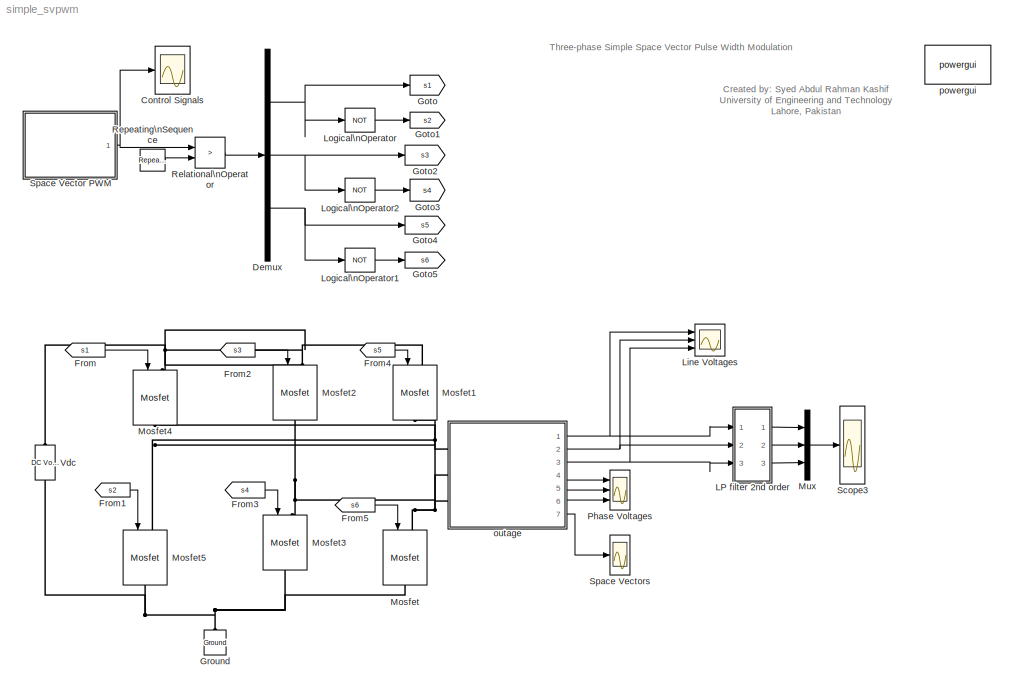
MODEL simple_svpwm
KIND model
CONFIG InitFcn = clc;\n\nf=50;           % Reference frequency\nfs=4000;      % Switching frequency\nm=1;           % Modulation index\n\nTs=10e-6;    % Sampling time of devices\n
CONFIG StopFcn = close all;\nfigure(1);\nplot(a(:,1),a(:,2),'-b',b(:,1),b(:,2),'-r');\naxis equal;\ngrid;\ntitle('Space Vector Trajectory');\nclear;\nclc;
BLOCK [Scope] Control Signals
  DataFormat = StructureWithTime
  Floating = off
  LimitDataPoints = off
  MaxDataPoints = 25000
  NumInputPorts = 1
  Ports = [1]
  SID = 10
  SampleInput = on
  SampleTime = Ts
  SaveName = ScopeData1
  TimeRange = 0.02
  YMax = 0.8
  YMin = -0.8
BLOCK [Demux] Demux
  DisplayOption = bar
  Outputs = 3
  Ports = [1, 3]
  SID = 74
BLOCK [From] From
  CloseFcn = tagdialog Close
  GotoTag = s1
  SID = 19
BLOCK [From] From1
  CloseFcn = tagdialog Close
  GotoTag = s2
  SID = 20
BLOCK [From] From2
  CloseFcn = tagdialog Close
  GotoTag = s3
  SID = 21
BLOCK [From] From3
  CloseFcn = tagdialog Close
  GotoTag = s4
  SID = 22
BLOCK [From] From4
  CloseFcn = tagdialog Close
  GotoTag = s5
  SID = 23
BLOCK [From] From5
  CloseFcn = tagdialog Close
  GotoTag = s6
  SID = 24
BLOCK [Goto] Goto
  GotoTag = s1
  SID = 75
  TagVisibility = local
BLOCK [Goto] Goto1
  GotoTag = s2
  SID = 76
  TagVisibility = local
BLOCK [Goto] Goto2
  GotoTag = s3
  SID = 77
  TagVisibility = local
BLOCK [Goto] Goto3
  GotoTag = s4
  SID = 78
  TagVisibility = local
BLOCK [Goto] Goto4
  GotoTag = s5
  SID = 79
  TagVisibility = local
BLOCK [Goto] Goto5
  GotoTag = s6
  SID = 80
  TagVisibility = local
BLOCK [Reference] Ground  REF=powerlib/Elements/Ground
  DialogController = POWERSYS.PowerSysDialog
  LConnTagsString = a
  LeftPortType = p1
  PhysicalDomain = powersysdomain
  Ports = [0, 0, 0, 0, 0, 1]
  RightPortType = p1
  SID = 25
  SourceBlock = powerlib/Elements/Ground
  SourceType = Ground
  SubClassName = unknown
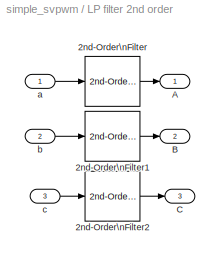
BLOCK [SubSystem] LP filter 2nd order
  FunctionWithSeparateData = off
  MaskCallbackString = |
  MaskEnableString = on,on
  MaskHideContents = off
  MaskIconFrame = on
  MaskIconOpaque = on
  MaskIconRotate = none
  MaskIconUnits = autoscale
  MaskPortRotate = default
  MaskPromptString = Cut off frequency|Damping Factor
  MaskStyleString = edit,edit
  MaskToolTipString = on,on
  MaskTunableValueString = on,on
  MaskValueString = 200|0.707
  MaskVariables = cutoff_frequency=@1;damping_factor=@2;
  MaskVisibilityString = on,on
  MinAlgLoopOccurrences = off
  Opaque = off
  Ports = [3, 3]
  PropExecContextOutsideSubsystem = off
  RTWSystemCode = Auto
  RequestExecContextInheritance = off
  SID = 26
BLOCK [Reference] LP filter 2nd order/2nd-Order\nFilter  REF=powerlib_extras/Control \nBlocks/2nd-Order\nFilter
  DialogController = POWERSYS.PowerSysDialog
  FilterType = Lowpass
  Fo = cutoff_frequency
  FunctionWithSeparateData = off
  Initialize = off
  PlotResponse = off
  Ports = [1, 1]
  RTWMemSecDataConstants = Inherit from model
  RTWMemSecDataInternal = Inherit from model
  RTWMemSecDataParameters = Inherit from model
  RTWMemSecFuncExecute = Inherit from model
  RTWMemSecFuncInitTerm = Inherit from model
  SID = 30
  ShowPortLabels = FromPortIcon
  SourceBlock = powerlib_extras/Control \nBlocks/2nd-Order\nFilter
  SourceType = 2nd-Order Filter
  SystemSampleTime = -1
  Vac_Init = [1 45 60]
  Vdc_Init = -0.5
  Zeta = damping_factor
  param1 = [1 500 1]
BLOCK [Reference] LP filter 2nd order/2nd-Order\nFilter1  REF=powerlib_extras/Control \nBlocks/2nd-Order\nFilter
  DialogController = POWERSYS.PowerSysDialog
  FilterType = Lowpass
  Fo = cutoff_frequency
  FunctionWithSeparateData = off
  Initialize = off
  PlotResponse = off
  Ports = [1, 1]
  RTWMemSecDataConstants = Inherit from model
  RTWMemSecDataInternal = Inherit from model
  RTWMemSecDataParameters = Inherit from model
  RTWMemSecFuncExecute = Inherit from model
  RTWMemSecFuncInitTerm = Inherit from model
  SID = 31
  ShowPortLabels = FromPortIcon
  SourceBlock = powerlib_extras/Control \nBlocks/2nd-Order\nFilter
  SourceType = 2nd-Order Filter
  SystemSampleTime = -1
  Vac_Init = [1 45 60]
  Vdc_Init = -0.5
  Zeta = damping_factor
  param1 = [1 500 1]
BLOCK [Reference] LP filter 2nd order/2nd-Order\nFilter2  REF=powerlib_extras/Control \nBlocks/2nd-Order\nFilter
  DialogController = POWERSYS.PowerSysDialog
  FilterType = Lowpass
  Fo = cutoff_frequency
  FunctionWithSeparateData = off
  Initialize = off
  PlotResponse = off
  Ports = [1, 1]
  RTWMemSecDataConstants = Inherit from model
  RTWMemSecDataInternal = Inherit from model
  RTWMemSecDataParameters = Inherit from model
  RTWMemSecFuncExecute = Inherit from model
  RTWMemSecFuncInitTerm = Inherit from model
  SID = 32
  ShowPortLabels = FromPortIcon
  SourceBlock = powerlib_extras/Control \nBlocks/2nd-Order\nFilter
  SourceType = 2nd-Order Filter
  SystemSampleTime = -1
  Vac_Init = [1 45 60]
  Vdc_Init = -0.5
  Zeta = damping_factor
  param1 = [1 500 1]
BLOCK [Outport] LP filter 2nd order/A
  IconDisplay = Port number
  OutDataType = sfix(16)
  OutScaling = 2^0
  SID = 33
BLOCK [Outport] LP filter 2nd order/B
  IconDisplay = Port number
  OutDataType = sfix(16)
  OutScaling = 2^0
  Port = 2
  SID = 34
BLOCK [Outport] LP filter 2nd order/C
  IconDisplay = Port number
  OutDataType = sfix(16)
  OutScaling = 2^0
  Port = 3
  SID = 35
BLOCK [Inport] LP filter 2nd order/a
  IconDisplay = Port number
  OutDataType = sfix(16)
  OutScaling = 2^0
  SID = 27
BLOCK [Inport] LP filter 2nd order/b
  IconDisplay = Port number
  OutDataType = sfix(16)
  OutScaling = 2^0
  Port = 2
  SID = 28
BLOCK [Inport] LP filter 2nd order/c
  IconDisplay = Port number
  OutDataType = sfix(16)
  OutScaling = 2^0
  Port = 3
  SID = 29
BLOCK [Scope] Line Voltages
  DataFormat = StructureWithTime
  Floating = off
  MaxDataPoints = 5000000
  NumInputPorts = 3
  Ports = [3]
  SID = 42
  SampleInput = on
  SampleTime = 2e-6
  SaveName = Line_voltages
  SaveToWorkspace = on
  YMax = 450~450~450
  YMin = -450~-450~-450
  ZoomMode = xonly
BLOCK [Logic] Logical\nOperator
  AllPortsSameDT = off
  LogicDataType = fixdt(0, 8)
  Operator = NOT
  OutDataTypeMode = boolean
  OutDataTypeStr = boolean
  Ports = [1, 1]
  SID = 81
BLOCK [Logic] Logical\nOperator1
  AllPortsSameDT = off
  LogicDataType = fixdt(0, 8)
  Operator = NOT
  OutDataTypeMode = boolean
  OutDataTypeStr = boolean
  Ports = [1, 1]
  SID = 82
BLOCK [Logic] Logical\nOperator2
  AllPortsSameDT = off
  LogicDataType = fixdt(0, 8)
  Operator = NOT
  OutDataTypeMode = boolean
  OutDataTypeStr = boolean
  Ports = [1, 1]
  SID = 83
BLOCK [Reference] Mosfet  REF=powerlib/Power\nElectronics/Mosfet
  Cs = inf
  DialogController = POWERSYS.PowerSysDialog
  FunctionWithSeparateData = off
  IC = 0
  Lon = 0
  Measurements = off
  Ports = [1, 0, 0, 0, 0, 1, 1]
  RTWMemSecDataConstants = Inherit from model
  RTWMemSecDataInternal = Inherit from model
  RTWMemSecDataParameters = Inherit from model
  RTWMemSecFuncExecute = Inherit from model
  RTWMemSecFuncInitTerm = Inherit from model
  Rd = 0.01
  Ron = 0.1
  Rs = 1e5
  SID = 36
  ShowPortLabels = FromPortIcon
  SourceBlock = powerlib/Power\nElectronics/Mosfet
  SourceType = Mosfet
  SystemSampleTime = -1
  Vfd = 0
BLOCK [Reference] Mosfet1  REF=powerlib/Power\nElectronics/Mosfet
  Cs = inf
  DialogController = POWERSYS.PowerSysDialog
  FunctionWithSeparateData = off
  IC = 0
  Lon = 0
  Measurements = off
  Ports = [1, 0, 0, 0, 0, 1, 1]
  RTWMemSecDataConstants = Inherit from model
  RTWMemSecDataInternal = Inherit from model
  RTWMemSecDataParameters = Inherit from model
  RTWMemSecFuncExecute = Inherit from model
  RTWMemSecFuncInitTerm = Inherit from model
  Rd = 0.01
  Ron = 0.1
  Rs = 1e5
  SID = 37
  ShowPortLabels = FromPortIcon
  SourceBlock = powerlib/Power\nElectronics/Mosfet
  SourceType = Mosfet
  SystemSampleTime = -1
  Vfd = 0
BLOCK [Reference] Mosfet2  REF=powerlib/Power\nElectronics/Mosfet
  Cs = inf
  DialogController = POWERSYS.PowerSysDialog
  FunctionWithSeparateData = off
  IC = 0
  Lon = 0
  Measurements = off
  Ports = [1, 0, 0, 0, 0, 1, 1]
  RTWMemSecDataConstants = Inherit from model
  RTWMemSecDataInternal = Inherit from model
  RTWMemSecDataParameters = Inherit from model
  RTWMemSecFuncExecute = Inherit from model
  RTWMemSecFuncInitTerm = Inherit from model
  Rd = 0.01
  Ron = 0.1
  Rs = 1e5
  SID = 38
  ShowPortLabels = FromPortIcon
  SourceBlock = powerlib/Power\nElectronics/Mosfet
  SourceType = Mosfet
  SystemSampleTime = -1
  Vfd = 0
BLOCK [Reference] Mosfet3  REF=powerlib/Power\nElectronics/Mosfet
  Cs = inf
  DialogController = POWERSYS.PowerSysDialog
  FunctionWithSeparateData = off
  IC = 0
  Lon = 0
  Measurements = off
  Ports = [1, 0, 0, 0, 0, 1, 1]
  RTWMemSecDataConstants = Inherit from model
  RTWMemSecDataInternal = Inherit from model
  RTWMemSecDataParameters = Inherit from model
  RTWMemSecFuncExecute = Inherit from model
  RTWMemSecFuncInitTerm = Inherit from model
  Rd = 0.01
  Ron = 0.1
  Rs = 1e5
  SID = 39
  ShowPortLabels = FromPortIcon
  SourceBlock = powerlib/Power\nElectronics/Mosfet
  SourceType = Mosfet
  SystemSampleTime = -1
  Vfd = 0
BLOCK [Reference] Mosfet4  REF=powerlib/Power\nElectronics/Mosfet
  Cs = inf
  DialogController = POWERSYS.PowerSysDialog
  FunctionWithSeparateData = off
  IC = 0
  Lon = 0
  Measurements = off
  Ports = [1, 0, 0, 0, 0, 1, 1]
  RTWMemSecDataConstants = Inherit from model
  RTWMemSecDataInternal = Inherit from model
  RTWMemSecDataParameters = Inherit from model
  RTWMemSecFuncExecute = Inherit from model
  RTWMemSecFuncInitTerm = Inherit from model
  Rd = 0.01
  Ron = 0.1
  Rs = 1e5
  SID = 40
  ShowPortLabels = FromPortIcon
  SourceBlock = powerlib/Power\nElectronics/Mosfet
  SourceType = Mosfet
  SystemSampleTime = -1
  Vfd = 0
BLOCK [Reference] Mosfet5  REF=powerlib/Power\nElectronics/Mosfet
  Cs = inf
  DialogController = POWERSYS.PowerSysDialog
  FunctionWithSeparateData = off
  IC = 0
  Lon = 0
  Measurements = off
  Ports = [1, 0, 0, 0, 0, 1, 1]
  RTWMemSecDataConstants = Inherit from model
  RTWMemSecDataInternal = Inherit from model
  RTWMemSecDataParameters = Inherit from model
  RTWMemSecFuncExecute = Inherit from model
  RTWMemSecFuncInitTerm = Inherit from model
  Rd = 0.01
  Ron = 0.1
  Rs = 1e5
  SID = 41
  ShowPortLabels = FromPortIcon
  SourceBlock = powerlib/Power\nElectronics/Mosfet
  SourceType = Mosfet
  SystemSampleTime = -1
  Vfd = 0
BLOCK [Mux] Mux
  DisplayOption = bar
  Inputs = 3
  Ports = [3, 1]
  SID = 104
BLOCK [Scope] Phase Voltages
  DataFormat = StructureWithTime
  Floating = off
  MaxDataPoints = 5000000
  NumInputPorts = 3
  Ports = [3]
  SID = 43
  SampleInput = on
  SampleTime = 2e-6
  SaveName = Neutral_voltages
  SaveToWorkspace = on
  YMax = 300~300~300
  YMin = -300~-300~-300
  ZoomMode = xonly
BLOCK [RelationalOperator] Relational\nOperator
  InputSameDT = off
  Operator = >
  Ports = [2, 1]
  SID = 15
BLOCK [Reference] Repeating\nSequence  REF=simulink/Sources/Repeating\nSequence
  FunctionWithSeparateData = off
  Ports = [0, 1]
  RTWMemSecDataConstants = Inherit from model
  RTWMemSecDataInternal = Inherit from model
  RTWMemSecDataParameters = Inherit from model
  RTWMemSecFuncExecute = Inherit from model
  RTWMemSecFuncInitTerm = Inherit from model
  SID = 16
  ShowPortLabels = FromPortIcon
  SourceBlock = simulink/Sources/Repeating\nSequence
  SourceType = Repeating table
  SystemSampleTime = -1
  rep_seq_t = [0 0.25/fs 0.5/fs 0.75/fs 1/fs]
  rep_seq_y = [1 0 -1 0 1]
BLOCK [Scope] Scope3
  DataFormat = StructureWithTime
  Floating = off
  MaxDataPoints = 5000000
  NumInputPorts = 1
  Ports = [1]
  SID = 44
  SampleInput = on
  SampleTime = 2e-6
  SaveName = Filtered_voltages
  SaveToWorkspace = on
  YMax = 400
  YMin = -400
  ZoomMode = xonly
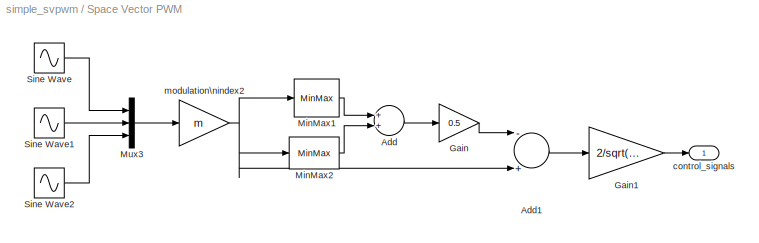
BLOCK [SubSystem] Space Vector PWM
  FunctionWithSeparateData = off
  MaskHideContents = off
  MinAlgLoopOccurrences = off
  Opaque = off
  Ports = [0, 1]
  PropExecContextOutsideSubsystem = off
  RTWSystemCode = Auto
  RequestExecContextInheritance = off
  SID = 17
BLOCK [Sum] Space Vector PWM/Add
  InputSameDT = off
  OutDataType = fixdt(1, 16)
  OutDataTypeMode = Inherit via internal rule
  OutDataTypeStr = Inherit: Inherit via internal rule
  OutScaling = 2^-10
  Ports = [2, 1]
  SID = 11
  SaturateOnIntegerOverflow = off
BLOCK [Sum] Space Vector PWM/Add1
  InputSameDT = off
  Inputs = -+
  OutDataType = fixdt(1, 16)
  OutDataTypeMode = Inherit via internal rule
  OutDataTypeStr = Inherit: Inherit via internal rule
  OutScaling = 2^-10
  Ports = [2, 1]
  SID = 13
  SaturateOnIntegerOverflow = off
BLOCK [Gain] Space Vector PWM/Gain
  Gain = 0.5
  OutDataType = fixdt(1, 16)
  OutDataTypeMode = Inherit via internal rule
  OutDataTypeStr = Inherit: Inherit via internal rule
  OutScaling = 2^0
  ParamDataTypeStr = Inherit: Inherit via internal rule
  ParameterDataType = fixdt(1, 16)
  ParameterDataTypeMode = Inherit via internal rule
  ParameterScaling = 2^0
  SID = 12
  SaturateOnIntegerOverflow = off
BLOCK [Gain] Space Vector PWM/Gain1
  Gain = 2/sqrt(3)
  OutDataType = fixdt(1, 16)
  OutDataTypeMode = Inherit via internal rule
  OutDataTypeStr = Inherit: Inherit via internal rule
  OutScaling = 2^0
  ParamDataTypeStr = Inherit: Inherit via internal rule
  ParameterDataType = fixdt(1, 16)
  ParameterDataTypeMode = Inherit via internal rule
  ParameterScaling = 2^0
  SID = 14
  SaturateOnIntegerOverflow = off
BLOCK [MinMax] Space Vector PWM/MinMax1
  Function = min
  Ports = [1, 1]
  SID = 7
BLOCK [MinMax] Space Vector PWM/MinMax2
  Function = max
  Ports = [1, 1]
  SID = 8
BLOCK [Mux] Space Vector PWM/Mux3
  DisplayOption = bar
  Inputs = 3
  Ports = [3, 1]
  SID = 1
BLOCK [Sin] Space Vector PWM/Sine Wave
  Amplitude = 1
  Bias = 0
  Frequency = 2*pi*f
  Offset = 0
  Phase = pi/2
  Ports = [0, 1]
  SID = 2
  SampleTime = 0
  Samples = 10
BLOCK [Sin] Space Vector PWM/Sine Wave1
  Amplitude = 1
  Bias = 0
  Frequency = 2*pi*f
  Offset = 0
  Phase = pi/2 -2*pi/3
  Ports = [0, 1]
  SID = 3
  SampleTime = 0
  Samples = 10
BLOCK [Sin] Space Vector PWM/Sine Wave2
  Amplitude = 1
  Bias = 0
  Frequency = 2*pi*f
  Offset = 0
  Phase = pi/2+2*pi/3
  Ports = [0, 1]
  SID = 4
  SampleTime = 0
  Samples = 10
BLOCK [Outport] Space Vector PWM/control_signals
  IconDisplay = Port number
  SID = 18
BLOCK [Gain] Space Vector PWM/modulation\nindex2
  Gain = m
  OutDataType = sfix(16)
  OutScaling = 2^0
  ParameterDataType = sfix(16)
  ParameterScaling = 2^0
  SID = 5
BLOCK [Scope] Space Vectors
  DataFormat = StructureWithTime
  Floating = off
  MaxDataPoints = 5000000
  NumInputPorts = 1
  Ports = [1]
  SID = 105
  SampleInput = on
  SampleTime = 2e-6
  SaveName = Neutral_voltages1
  SaveToWorkspace = on
  YMax = 350
  YMin = -350
  ZoomMode = xonly
BLOCK [Reference] Vdc  REF=powerlib/Electrical\nSources/DC Voltage Source
  Amplitude = 400
  DialogController = POWERSYS.PowerSysDialog
  FunctionWithSeparateData = off
  Measurements = None
  Ports = [0, 0, 0, 0, 0, 1, 1]
  RTWMemSecDataConstants = Inherit from model
  RTWMemSecDataInternal = Inherit from model
  RTWMemSecDataParameters = Inherit from model
  RTWMemSecFuncExecute = Inherit from model
  RTWMemSecFuncInitTerm = Inherit from model
  SID = 45
  ShowPortLabels = FromPortIcon
  SourceBlock = powerlib/Electrical\nSources/DC Voltage Source
  SourceType = DC Voltage Source
  SystemSampleTime = -1
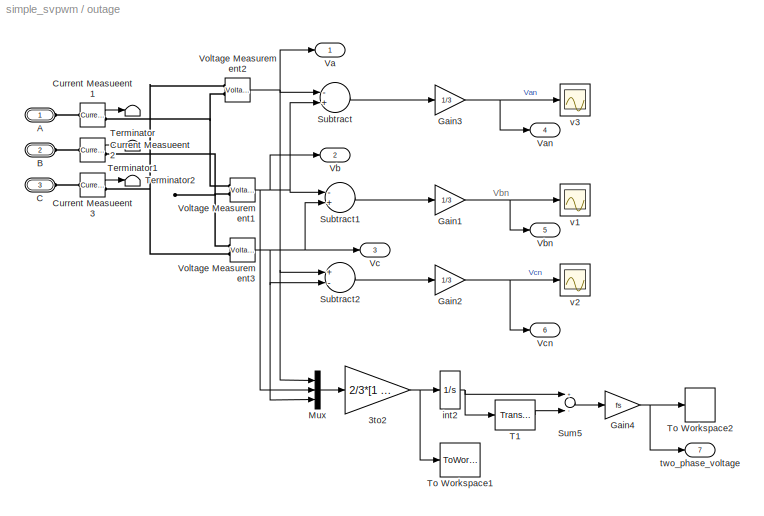
BLOCK [SubSystem] outage
  FunctionWithSeparateData = off
  MaskHideContents = off
  MinAlgLoopOccurrences = off
  Opaque = off
  Ports = [0, 7, 0, 0, 0, 3]
  PropExecContextOutsideSubsystem = off
  RTWSystemCode = Auto
  RequestExecContextInheritance = off
  SID = 46
BLOCK [Gain] outage/3to2
  Gain = 2/3*[1 -0.5 -0.5;0 sqrt(3)/2 -sqrt(3)/2]
  Multiplication = Matrix(K*u)
  OutDataType = sfix(16)
  OutScaling = 2^0
  ParameterDataType = sfix(16)
  ParameterScaling = 2^0
  SID = 86
BLOCK [PMIOPort] outage/A
  Port = 1
  SID = 65
  Side = Left
BLOCK [PMIOPort] outage/B
  Port = 2
  SID = 66
  Side = Left
BLOCK [PMIOPort] outage/C
  Port = 3
  SID = 67
  Side = Left
BLOCK [Reference] outage/Current Measueent1  REF=powerlib/Measurements/Current Measurement
  DialogController = POWERSYS.PowerSysDialog
  FunctionWithSeparateData = off
  OutputType = Complex
  PSBequivalent = 0
  PhasorSimulation = off
  Ports = [0, 1, 0, 0, 0, 1, 1]
  RTWMemSecDataConstants = Inherit from model
  RTWMemSecDataInternal = Inherit from model
  RTWMemSecDataParameters = Inherit from model
  RTWMemSecFuncExecute = Inherit from model
  RTWMemSecFuncInitTerm = Inherit from model
  SID = 47
  ShowPortLabels = FromPortIcon
  SourceBlock = powerlib/Measurements/Current Measurement
  SourceType = Current Measurement
  SystemSampleTime = -1
BLOCK [Reference] outage/Current Measueent2  REF=powerlib/Measurements/Current Measurement
  DialogController = POWERSYS.PowerSysDialog
  FunctionWithSeparateData = off
  OutputType = Complex
  PSBequivalent = 0
  PhasorSimulation = off
  Ports = [0, 1, 0, 0, 0, 1, 1]
  RTWMemSecDataConstants = Inherit from model
  RTWMemSecDataInternal = Inherit from model
  RTWMemSecDataParameters = Inherit from model
  RTWMemSecFuncExecute = Inherit from model
  RTWMemSecFuncInitTerm = Inherit from model
  SID = 48
  ShowPortLabels = FromPortIcon
  SourceBlock = powerlib/Measurements/Current Measurement
  SourceType = Current Measurement
  SystemSampleTime = -1
BLOCK [Reference] outage/Current Measueent3  REF=powerlib/Measurements/Current Measurement
  DialogController = POWERSYS.PowerSysDialog
  FunctionWithSeparateData = off
  OutputType = Complex
  PSBequivalent = 0
  PhasorSimulation = off
  Ports = [0, 1, 0, 0, 0, 1, 1]
  RTWMemSecDataConstants = Inherit from model
  RTWMemSecDataInternal = Inherit from model
  RTWMemSecDataParameters = Inherit from model
  RTWMemSecFuncExecute = Inherit from model
  RTWMemSecFuncInitTerm = Inherit from model
  SID = 49
  ShowPortLabels = FromPortIcon
  SourceBlock = powerlib/Measurements/Current Measurement
  SourceType = Current Measurement
  SystemSampleTime = -1
BLOCK [Gain] outage/Gain1
  Gain = 1/3
  OutDataType = sfix(16)
  OutDataTypeMode = Inherit via internal rule
  OutDataTypeStr = Inherit: Inherit via internal rule
  OutScaling = 2^0
  ParamDataTypeStr = Inherit: Inherit via internal rule
  ParameterDataType = sfix(16)
  ParameterDataTypeMode = Inherit via internal rule
  ParameterScaling = 2^0
  SID = 50
  SaturateOnIntegerOverflow = off
BLOCK [Gain] outage/Gain2
  Gain = 1/3
  OutDataType = sfix(16)
  OutDataTypeMode = Inherit via internal rule
  OutDataTypeStr = Inherit: Inherit via internal rule
  OutScaling = 2^0
  ParamDataTypeStr = Inherit: Inherit via internal rule
  ParameterDataType = sfix(16)
  ParameterDataTypeMode = Inherit via internal rule
  ParameterScaling = 2^0
  SID = 51
  SaturateOnIntegerOverflow = off
BLOCK [Gain] outage/Gain3
  Gain = 1/3
  OutDataType = sfix(16)
  OutDataTypeMode = Inherit via internal rule
  OutDataTypeStr = Inherit: Inherit via internal rule
  OutScaling = 2^0
  ParamDataTypeStr = Inherit: Inherit via internal rule
  ParameterDataType = sfix(16)
  ParameterDataTypeMode = Inherit via internal rule
  ParameterScaling = 2^0
  SID = 52
  SaturateOnIntegerOverflow = off
BLOCK [Gain] outage/Gain4
  Gain = fs
  OutDataType = sfix(16)
  OutScaling = 2^0
  ParameterDataType = sfix(16)
  ParameterScaling = 2^0
  SID = 97
BLOCK [Mux] outage/Mux
  DisplayOption = bar
  Inputs = 3
  Ports = [3, 1]
  SID = 87
BLOCK [Sum] outage/Subtract
  InputSameDT = off
  Inputs = -+
  OutDataType = sfix(16)
  OutDataTypeMode = Inherit via internal rule
  OutDataTypeStr = Inherit: Inherit via internal rule
  OutScaling = 2^-10
  Ports = [2, 1]
  SID = 53
  SaturateOnIntegerOverflow = off
BLOCK [Sum] outage/Subtract1
  InputSameDT = off
  Inputs = -+
  OutDataType = sfix(16)
  OutDataTypeMode = Inherit via internal rule
  OutDataTypeStr = Inherit: Inherit via internal rule
  OutScaling = 2^-10
  Ports = [2, 1]
  SID = 54
  SaturateOnIntegerOverflow = off
BLOCK [Sum] outage/Subtract2
  InputSameDT = off
  Inputs = +-
  OutDataType = sfix(16)
  OutDataTypeMode = Inherit via internal rule
  OutDataTypeStr = Inherit: Inherit via internal rule
  OutScaling = 2^-10
  Ports = [2, 1]
  SID = 55
  SaturateOnIntegerOverflow = off
BLOCK [Sum] outage/Sum5
  Inputs = +-
  OutDataType = sfix(16)
  OutScaling = 2^0
  Ports = [2, 1]
  SID = 98
BLOCK [TransportDelay] outage/T1
  BufferSize = 2048
  DelayTime = 1/fs
  SID = 99
BLOCK [Terminator] outage/Terminator
  SID = 56
BLOCK [Terminator] outage/Terminator1
  SID = 57
BLOCK [Terminator] outage/Terminator2
  SID = 58
BLOCK [ToWorkspace] outage/To Workspace1
  Decimation = 2
  MaxDataPoints = inf
  Ports = [1]
  SID = 100
  SampleTime = -1
  SaveFormat = Array
  VariableName = a
BLOCK [ToWorkspace] outage/To Workspace2
  Decimation = 2
  MaxDataPoints = inf
  Ports = [1]
  SID = 101
  SampleTime = -1
  SaveFormat = Array
  VariableName = b
BLOCK [Outport] outage/Va
  IconDisplay = Port number
  OutDataType = sfix(16)
  OutScaling = 2^0
  SID = 68
BLOCK [Outport] outage/Van
  IconDisplay = Port number
  OutDataType = sfix(16)
  OutScaling = 2^0
  Port = 4
  SID = 71
BLOCK [Outport] outage/Vb
  IconDisplay = Port number
  OutDataType = sfix(16)
  OutScaling = 2^0
  Port = 2
  SID = 69
BLOCK [Outport] outage/Vbn
  IconDisplay = Port number
  OutDataType = sfix(16)
  OutScaling = 2^0
  Port = 5
  SID = 72
BLOCK [Outport] outage/Vc
  IconDisplay = Port number
  OutDataType = sfix(16)
  OutScaling = 2^0
  Port = 3
  SID = 70
BLOCK [Outport] outage/Vcn
  IconDisplay = Port number
  OutDataType = sfix(16)
  OutScaling = 2^0
  Port = 6
  SID = 73
BLOCK [Reference] outage/Voltage Measurement1  REF=powerlib/Measurements/Voltage Measurement
  DialogController = POWERSYS.PowerSysDialog
  FunctionWithSeparateData = off
  OutputType = Complex
  PSBequivalent = 0
  PhasorSimulation = off
  Ports = [0, 1, 0, 0, 0, 2]
  RTWMemSecDataConstants = Inherit from model
  RTWMemSecDataInternal = Inherit from model
  RTWMemSecDataParameters = Inherit from model
  RTWMemSecFuncExecute = Inherit from model
  RTWMemSecFuncInitTerm = Inherit from model
  SID = 59
  ShowPortLabels = FromPortIcon
  SourceBlock = powerlib/Measurements/Voltage Measurement
  SourceType = Voltage Measurement
  SystemSampleTime = -1
BLOCK [Reference] outage/Voltage Measurement2  REF=powerlib/Measurements/Voltage Measurement
  DialogController = POWERSYS.PowerSysDialog
  FunctionWithSeparateData = off
  OutputType = Complex
  PSBequivalent = 0
  PhasorSimulation = off
  Ports = [0, 1, 0, 0, 0, 2]
  RTWMemSecDataConstants = Inherit from model
  RTWMemSecDataInternal = Inherit from model
  RTWMemSecDataParameters = Inherit from model
  RTWMemSecFuncExecute = Inherit from model
  RTWMemSecFuncInitTerm = Inherit from model
  SID = 60
  ShowPortLabels = FromPortIcon
  SourceBlock = powerlib/Measurements/Voltage Measurement
  SourceType = Voltage Measurement
  SystemSampleTime = -1
BLOCK [Reference] outage/Voltage Measurement3  REF=powerlib/Measurements/Voltage Measurement
  DialogController = POWERSYS.PowerSysDialog
  FunctionWithSeparateData = off
  OutputType = Complex
  PSBequivalent = 0
  PhasorSimulation = off
  Ports = [0, 1, 0, 0, 0, 2]
  RTWMemSecDataConstants = Inherit from model
  RTWMemSecDataInternal = Inherit from model
  RTWMemSecDataParameters = Inherit from model
  RTWMemSecFuncExecute = Inherit from model
  RTWMemSecFuncInitTerm = Inherit from model
  SID = 61
  ShowPortLabels = FromPortIcon
  SourceBlock = powerlib/Measurements/Voltage Measurement
  SourceType = Voltage Measurement
  SystemSampleTime = -1
BLOCK [Integrator] outage/int2
  Ports = [1, 1]
  SID = 102
BLOCK [Outport] outage/two_phase_voltage
  IconDisplay = Port number
  OutDataType = sfix(16)
  OutScaling = 2^0
  Port = 7
  SID = 103
BLOCK [Scope] outage/v1
  DataFormat = StructureWithTime
  Floating = off
  MaxDataPoints = 5000000
  NumInputPorts = 1
  Ports = [1]
  SID = 62
  SampleTime = 0
  SaveName = ScopeData25
BLOCK [Scope] outage/v2
  DataFormat = StructureWithTime
  Floating = off
  MaxDataPoints = 5000000
  NumInputPorts = 1
  Ports = [1]
  SID = 63
  SampleTime = 0
  SaveName = ScopeData26
BLOCK [Scope] outage/v3
  DataFormat = StructureWithTime
  Floating = off
  MaxDataPoints = 5000000
  NumInputPorts = 1
  Ports = [1]
  SID = 64
  SampleTime = 0
  SaveName = ScopeData27
  YMax = 300
  YMin = -300
BLOCK [Reference] powergui  REF=powerlib/powergui
  DisableRonSwitches = off
  DisableSnubberDevices = off
  DisableVfSwitches = off
  DisplayEquations = off
  DisplayStyle = 1
  EnableUseOfTLC = off
  FreqAxis = off
  FunctionMessages = off
  FunctionWithSeparateData = off
  HookPort = off
  Interpol = off
  MaxFrequency = 1000
  Ports = []
  Priority = 1
  RTWMemSecDataConstants = Inherit from model
  RTWMemSecDataInternal = Inherit from model
  RTWMemSecDataParameters = Inherit from model
  RTWMemSecFuncExecute = Inherit from model
  RTWMemSecFuncInitTerm = Inherit from model
  ResistiveCurrentMeasurement = off
  RestoreLinks = warning
  SID = 84
  SPID = off
  SampleTime = 50e-6
  ShowGrid = off
  ShowPortLabels = FromPortIcon
  SourceBlock = powerlib/powergui
  SourceType = PSB option menu block
  StartTime = 0.02
  SwTol = 0
  SystemSampleTime = -1
  UserData = DataTag0
  UserDataPersistent = on
  Xlog = on
  Ylog = off
  ZoomFFT = off
  cycles = 1
  display = off
  echomessages = off
  frequency = 60
  frequencyindice = 0
  frequencyindicesteady = 1
  fundamental = 50
  methode = off
  save = off
  structure = Filtered_voltages
  variable = ZData
  x0status = blocks
ANNOTATION (root): Created by: Syed Abdul Rahman Kashif\nUniversity of Engineering and Technology\nLahore, Pakistan
ANNOTATION (root): Three-phase Simple Space Vector Pulse Width Modulation
ANNOTATION outage: Vbn
NET Demux:1 -> Goto:1, Logical\nOperator:1
NET Demux:2 -> Goto2:1, Logical\nOperator2:1
NET Demux:3 -> Goto4:1, Logical\nOperator1:1
LINE From1:1 -> Mosfet5:1
LINE From2:1 -> Mosfet2:1
LINE From3:1 -> Mosfet3:1
LINE From4:1 -> Mosfet1:1
LINE From5:1 -> Mosfet:1
LINE From:1 -> Mosfet4:1
LINE LP filter 2nd order/2nd-Order\nFilter1:1 -> LP filter 2nd order/B:1
LINE LP filter 2nd order/2nd-Order\nFilter2:1 -> LP filter 2nd order/C:1
LINE LP filter 2nd order/2nd-Order\nFilter:1 -> LP filter 2nd order/A:1
LINE LP filter 2nd order/a:1 -> LP filter 2nd order/2nd-Order\nFilter:1
LINE LP filter 2nd order/b:1 -> LP filter 2nd order/2nd-Order\nFilter1:1
LINE LP filter 2nd order/c:1 -> LP filter 2nd order/2nd-Order\nFilter2:1
LINE LP filter 2nd order:1 -> Mux:1
LINE LP filter 2nd order:2 -> Mux:2
LINE LP filter 2nd order:3 -> Mux:3
LINE Logical\nOperator1:1 -> Goto5:1
LINE Logical\nOperator2:1 -> Goto3:1
LINE Logical\nOperator:1 -> Goto1:1
LINE Mux:1 -> Scope3:1
LINE Relational\nOperator:1 -> Demux:1
LINE Repeating\nSequence:1 -> Relational\nOperator:2
LINE Space Vector PWM/Add1:1 -> Space Vector PWM/Gain1:1
LINE Space Vector PWM/Add:1 -> Space Vector PWM/Gain:1
LINE Space Vector PWM/Gain1:1 -> Space Vector PWM/control_signals:1
LINE Space Vector PWM/Gain:1 -> Space Vector PWM/Add1:1
LINE Space Vector PWM/MinMax1:1 -> Space Vector PWM/Add:1
LINE Space Vector PWM/MinMax2:1 -> Space Vector PWM/Add:2
LINE Space Vector PWM/Mux3:1 -> Space Vector PWM/modulation\nindex2:1
LINE Space Vector PWM/Sine Wave1:1 -> Space Vector PWM/Mux3:2
LINE Space Vector PWM/Sine Wave2:1 -> Space Vector PWM/Mux3:3
LINE Space Vector PWM/Sine Wave:1 -> Space Vector PWM/Mux3:1
NET Space Vector PWM/modulation\nindex2:1 -> Space Vector PWM/Add1:2, Space Vector PWM/MinMax1:1, Space Vector PWM/MinMax2:1
NET Space Vector PWM:1 -> Control Signals:1, Relational\nOperator:1
NET outage/3to2:1 -> outage/To Workspace1:1, outage/int2:1
LINE outage/Current Measueent1:1 -> outage/Terminator:1
LINE outage/Current Measueent2:1 -> outage/Terminator1:1
LINE outage/Current Measueent3:1 -> outage/Terminator2:1
NET outage/Gain1:1 -> outage/Vbn:1, outage/v1:1
NET outage/Gain2:1 -> outage/Vcn:1, outage/v2:1
NET outage/Gain3:1 -> outage/Van:1, outage/v3:1
NET outage/Gain4:1 -> outage/To Workspace2:1, outage/two_phase_voltage:1
LINE outage/Mux:1 -> outage/3to2:1
LINE outage/Subtract1:1 -> outage/Gain1:1
LINE outage/Subtract2:1 -> outage/Gain2:1
LINE outage/Subtract:1 -> outage/Gain3:1
LINE outage/Sum5:1 -> outage/Gain4:1
LINE outage/T1:1 -> outage/Sum5:2
NET outage/Voltage Measurement1:1 -> outage/Mux:2, outage/Subtract1:1, outage/Subtract:2, outage/Vb:1
NET outage/Voltage Measurement2:1 -> outage/Mux:1, outage/Subtract2:1, outage/Subtract:1, outage/Va:1
NET outage/Voltage Measurement3:1 -> outage/Mux:3, outage/Subtract1:2, outage/Subtract2:2, outage/Vc:1
NET outage/int2:1 -> outage/Sum5:1, outage/T1:1
NET outage:1 -> LP filter 2nd order:1, Line Voltages:1
NET outage:2 -> LP filter 2nd order:2, Line Voltages:2
NET outage:3 -> LP filter 2nd order:3, Line Voltages:3
LINE outage:4 -> Phase Voltages:1
LINE outage:5 -> Phase Voltages:2
LINE outage:6 -> Phase Voltages:3
LINE outage:7 -> Space Vectors:1
PNET net1: Ground:LConn1 -- Mosfet3:RConn1 -- Mosfet5:RConn1 -- Mosfet:RConn1 -- Vdc:LConn1
PNET net2: Mosfet1:LConn1 -- Mosfet2:LConn1 -- Mosfet4:LConn1 -- Vdc:RConn1
PNET net3: Mosfet1:RConn1 -- Mosfet:LConn1 -- outage:LConn3
PNET net4: Mosfet2:RConn1 -- Mosfet3:LConn1 -- outage:LConn2
PNET net5: Mosfet4:RConn1 -- Mosfet5:LConn1 -- outage:LConn1
PLINE outage/A:RConn1 -- outage/Current Measueent1:LConn1
PLINE outage/B:RConn1 -- outage/Current Measueent2:LConn1
PLINE outage/C:RConn1 -- outage/Current Measueent3:LConn1
PNET net6: outage/Current Measueent1:RConn1 -- outage/Voltage Measurement1:LConn1 -- outage/Voltage Measurement2:LConn2
PNET net7: outage/Current Measueent2:RConn1 -- outage/Voltage Measurement1:LConn2 -- outage/Voltage Measurement3:LConn1
PNET net8: outage/Current Measueent3:RConn1 -- outage/Voltage Measurement2:LConn1 -- outage/Voltage Measurement3:LConn2
note: NET lines group one-source signal fan-out (src -> all destinations, sorted); 1:1 wires keep LINE; PNET lines group multi-terminal physical nets as a canonical sorted terminal list (undirected conserving connections); 2-terminal nets keep the pairwise PLINE form
